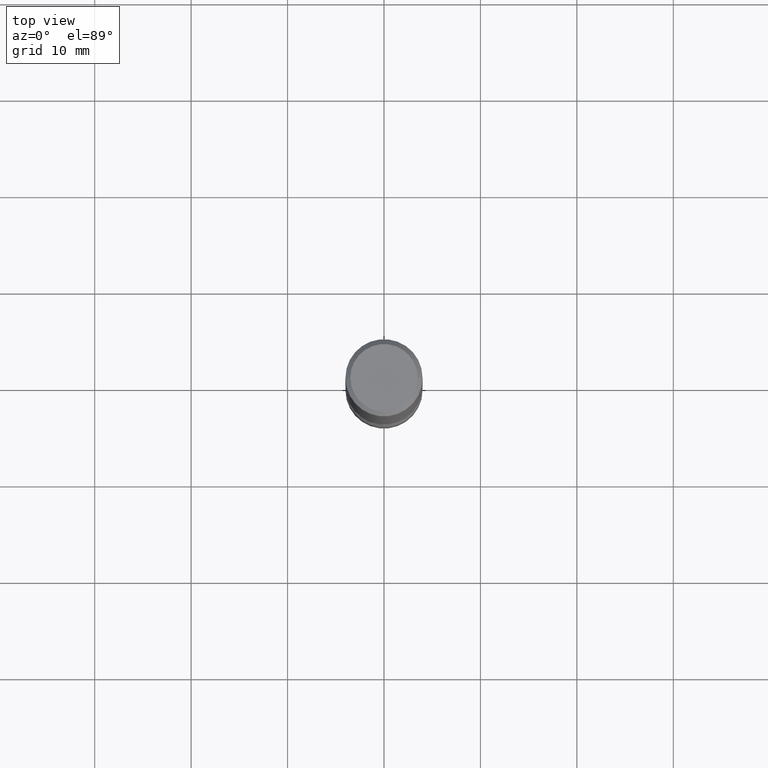
[diagram: clean part render]
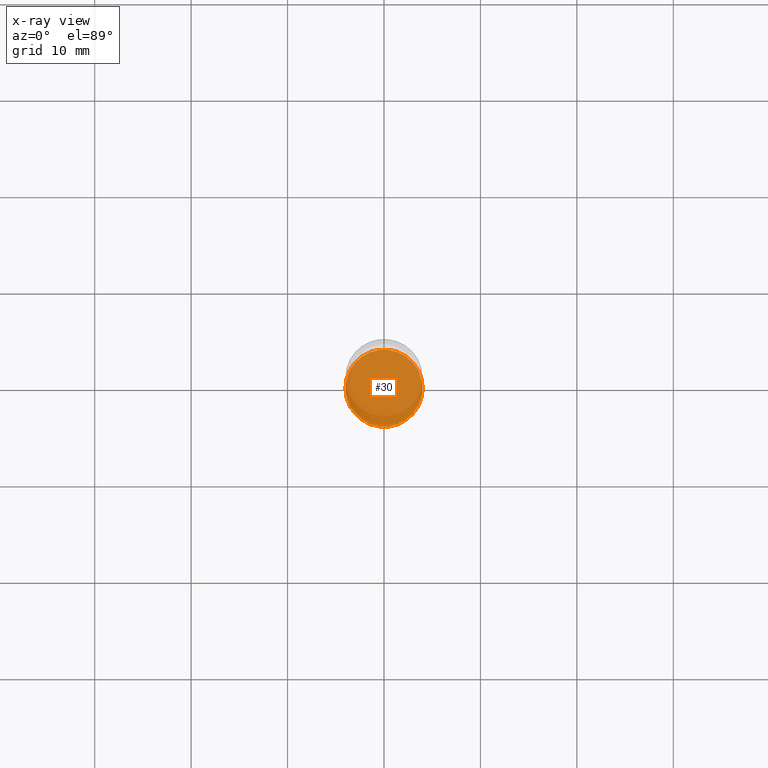
[diagram: x-ray — body ghosted, one internal face saturated and labeled with its STEP entity id]
A machine part, top view, then the same camera in x-ray: the body is ghosted and one INTERNAL B-rep face — a face not visible from any outside direction — is saturated and labeled: STEP entity #30.
In plain terms, the highlighted planar face has unit normal (0, -0, -1).
Its self-contained STEP definition (entity closure, byte-faithful):
#15 = DIRECTION ( 'NONE',  ( 1.000000000000000000, -6.982962677686269866E-15, 0.000000000000000000 ) ) ;
#19 = EDGE_CURVE ( 'NONE', #298, #250, #95, .T. ) ;
#26 = EDGE_LOOP ( 'NONE', ( #391, #388 ) ) ;
#30 = ADVANCED_FACE ( 'NONE', ( #352 ), #523, .F. ) ;
#48 = DIRECTION ( 'NONE',  ( 1.000000000000000000, -6.982962677686269866E-15, 0.000000000000000000 ) ) ;
#90 = DIRECTION ( 'NONE',  ( 2.438088387897960049E-29, -3.491481338843145188E-15, -1.000000000000000000 ) ) ;
#95 = CIRCLE ( 'NONE', #123, 0.1575000000000003619 ) ;
#123 = AXIS2_PLACEMENT_3D ( 'NONE', #353, #136, #48 ) ;
#136 = DIRECTION ( 'NONE',  ( -2.445468806185136597E-29, 3.491481338843145583E-15, 1.000000000000000000 ) ) ;
#151 = AXIS2_PLACEMENT_3D ( 'NONE', #476, #90, #433 ) ;
#152 = AXIS2_PLACEMENT_3D ( 'NONE', #402, #276, #15 ) ;
#214 = CARTESIAN_POINT ( 'NONE',  ( 0.1575000000000003619, -9.760086934602128694E-15, -2.480399999999999938 ) ) ;
#250 = VERTEX_POINT ( 'NONE', #549 ) ;
#276 = DIRECTION ( 'NONE',  ( -2.445468806185136597E-29, 3.491481338843145583E-15, 1.000000000000000000 ) ) ;
#298 = VERTEX_POINT ( 'NONE', #214 ) ;
#306 = CIRCLE ( 'NONE', #152, 0.1575000000000003619 ) ;
#352 = FACE_OUTER_BOUND ( 'NONE', #26, .T. ) ;
#353 = CARTESIAN_POINT ( 'NONE',  ( 6.065740826861613539E-29, -8.660270312866538847E-15, -2.480399999999999938 ) ) ;
#388 = ORIENTED_EDGE ( 'NONE', *, *, #461, .T. ) ;
#391 = ORIENTED_EDGE ( 'NONE', *, *, #19, .T. ) ;
#402 = CARTESIAN_POINT ( 'NONE',  ( 6.065740826861613539E-29, -8.660270312866538847E-15, -2.480399999999999938 ) ) ;
#433 = DIRECTION ( 'NONE',  ( -1.000000000000000000, 6.982962677686265922E-15, -4.876176775795935793E-29 ) ) ;
#461 = EDGE_CURVE ( 'NONE', #250, #298, #306, .T. ) ;
#476 = CARTESIAN_POINT ( 'NONE',  ( 1.207425945004751623E-28, -5.572966082231867292E-17, -2.480399999999999938 ) ) ;
#523 = PLANE ( 'NONE',  #151 ) ;
#549 = CARTESIAN_POINT ( 'NONE',  ( -0.1575000000000003619, -8.255871734105570837E-15, -2.480399999999999938 ) ) ;